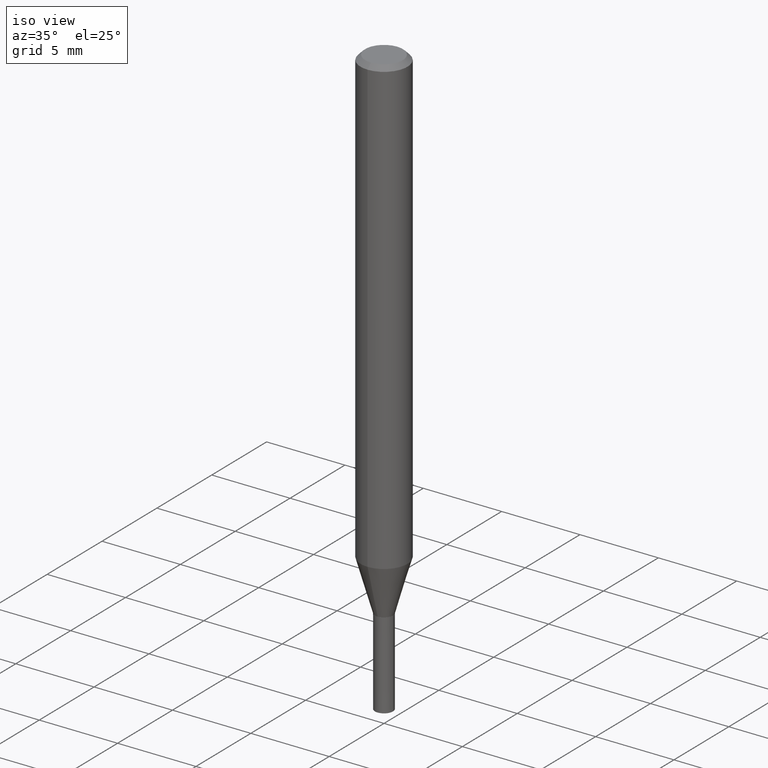
[diagram: clean part render]
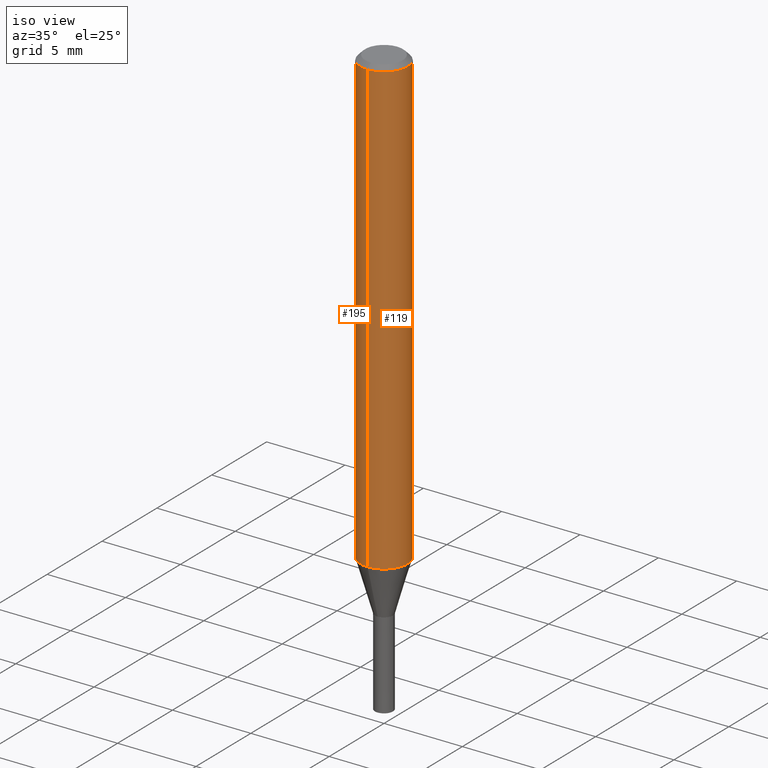
[diagram: same view with one multi-face feature highlighted, each face labeled with its STEP entity id]
A machine part, iso view. The highlighted faces form ONE feature: a constant-radius fillet chain: 2 tangent blend faces with common blend radius 1.5 mm. The faces share edges in the B-rep.
Their STEP definitions:
[1] entity #195 (Cylinder):
#91=VERTEX_POINT('',#226);
#103=EDGE_CURVE('',#161,#143,#240,.T.);
#107=VERTEX_POINT('',#244);
#143=VERTEX_POINT('',#284);
#155=EDGE_CURVE('',#107,#91,#297,.T.);
#161=VERTEX_POINT('',#303);
#173=EDGE_CURVE('',#91,#143,#318,.T.);
#195=ADVANCED_FACE('',(#341),#342,.T.);
#201=EDGE_CURVE('',#161,#107,#350,.T.);
#226=CARTESIAN_POINT('',(0.0,1.5,-0.300000000000001));
#240=CIRCLE('',#384,1.5);
#244=CARTESIAN_POINT('',(1.83690953073357E-016,-1.5,-0.300000000000001));
#284=CARTESIAN_POINT('',(0.0,1.5,-28.974));
#297=CIRCLE('',#459,1.5);
#303=CARTESIAN_POINT('',(1.83690953073357E-016,-1.5,-28.974));
#318=LINE('',#486,#487);
#341=FACE_OUTER_BOUND('',#517,.T.);
#342=CYLINDRICAL_SURFACE('',#518,1.5);
#350=LINE('',#527,#528);
#384=AXIS2_PLACEMENT_3D('',#551,#552,#553);
#459=AXIS2_PLACEMENT_3D('',#619,#620,#621);
#486=CARTESIAN_POINT('',(-1.83690953073357E-016,1.5,-14.637));
#487=VECTOR('',#651,1.0);
#517=EDGE_LOOP('',(#674,#675,#676,#677));
#518=AXIS2_PLACEMENT_3D('',#678,#679,#680);
#527=CARTESIAN_POINT('',(1.83690953073357E-016,-1.5,-14.637));
#528=VECTOR('',#694,1.0);
#551=CARTESIAN_POINT('',(0.0,0.0,-28.974));
#552=DIRECTION('',(0.0,0.0,-1.0));
#553=DIRECTION('',(0.0,1.0,0.0));
#619=CARTESIAN_POINT('',(0.0,0.0,-0.300000000000001));
#620=DIRECTION('',(0.0,0.0,-1.0));
#621=DIRECTION('',(0.0,1.0,0.0));
#651=DIRECTION('',(0.0,0.0,-1.0));
#674=ORIENTED_EDGE('',*,*,#173,.T.);
#675=ORIENTED_EDGE('',*,*,#103,.F.);
#676=ORIENTED_EDGE('',*,*,#201,.T.);
#677=ORIENTED_EDGE('',*,*,#155,.T.);
#678=CARTESIAN_POINT('',(0.0,0.0,-14.637));
#679=DIRECTION('',(-0.0,-0.0,1.0));
#680=DIRECTION('',(0.0,1.0,0.0));
#694=DIRECTION('',(-0.0,-0.0,1.0));
[2] entity #119 (Cylinder):
#91=VERTEX_POINT('',#226);
#107=VERTEX_POINT('',#244);
#119=ADVANCED_FACE('',(#257),#258,.T.);
#143=VERTEX_POINT('',#284);
#161=VERTEX_POINT('',#303);
#169=EDGE_CURVE('',#143,#161,#314,.T.);
#173=EDGE_CURVE('',#91,#143,#318,.T.);
#177=EDGE_CURVE('',#91,#107,#322,.T.);
#201=EDGE_CURVE('',#161,#107,#350,.T.);
#226=CARTESIAN_POINT('',(0.0,1.5,-0.300000000000001));
#244=CARTESIAN_POINT('',(1.83690953073357E-016,-1.5,-0.300000000000001));
#257=FACE_OUTER_BOUND('',#405,.T.);
#258=CYLINDRICAL_SURFACE('',#406,1.5);
#284=CARTESIAN_POINT('',(0.0,1.5,-28.974));
#303=CARTESIAN_POINT('',(1.83690953073357E-016,-1.5,-28.974));
#314=CIRCLE('',#479,1.5);
#318=LINE('',#486,#487);
#322=CIRCLE('',#493,1.5);
#350=LINE('',#527,#528);
#405=EDGE_LOOP('',(#569,#570,#571,#572));
#406=AXIS2_PLACEMENT_3D('',#573,#574,#575);
#479=AXIS2_PLACEMENT_3D('',#647,#648,#649);
#486=CARTESIAN_POINT('',(-1.83690953073357E-016,1.5,-14.637));
#487=VECTOR('',#651,1.0);
#493=AXIS2_PLACEMENT_3D('',#655,#656,#657);
#527=CARTESIAN_POINT('',(1.83690953073357E-016,-1.5,-14.637));
#528=VECTOR('',#694,1.0);
#569=ORIENTED_EDGE('',*,*,#173,.F.);
#570=ORIENTED_EDGE('',*,*,#177,.T.);
#571=ORIENTED_EDGE('',*,*,#201,.F.);
#572=ORIENTED_EDGE('',*,*,#169,.F.);
#573=CARTESIAN_POINT('',(0.0,0.0,-14.637));
#574=DIRECTION('',(-0.0,-0.0,1.0));
#575=DIRECTION('',(0.0,1.0,0.0));
#647=CARTESIAN_POINT('',(0.0,0.0,-28.974));
#648=DIRECTION('',(0.0,0.0,-1.0));
#649=DIRECTION('',(0.0,1.0,0.0));
#651=DIRECTION('',(0.0,0.0,-1.0));
#655=CARTESIAN_POINT('',(0.0,0.0,-0.300000000000001));
#656=DIRECTION('',(0.0,0.0,-1.0));
#657=DIRECTION('',(0.0,1.0,0.0));
#694=DIRECTION('',(-0.0,-0.0,1.0));